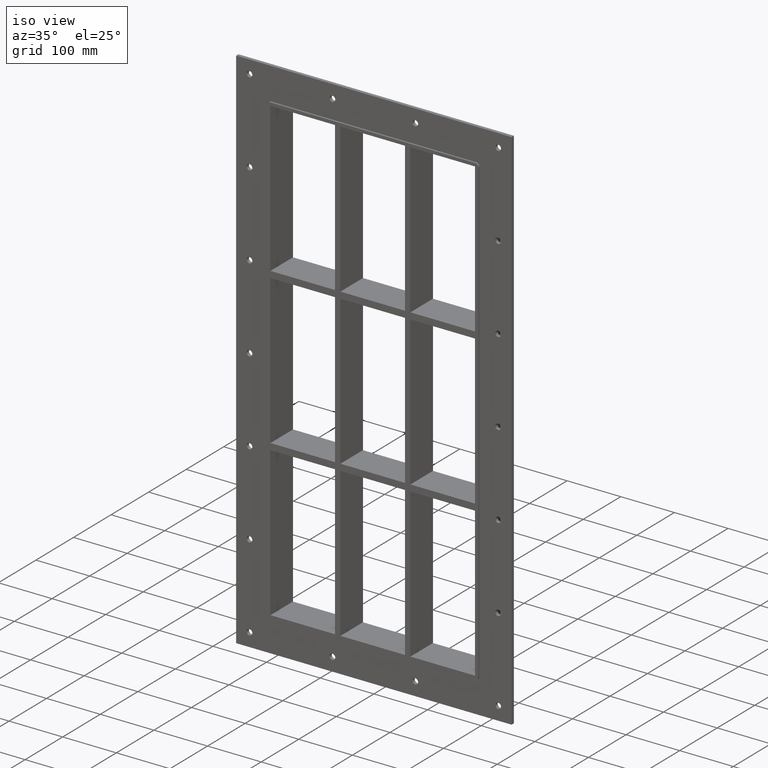
[diagram: clean part render]
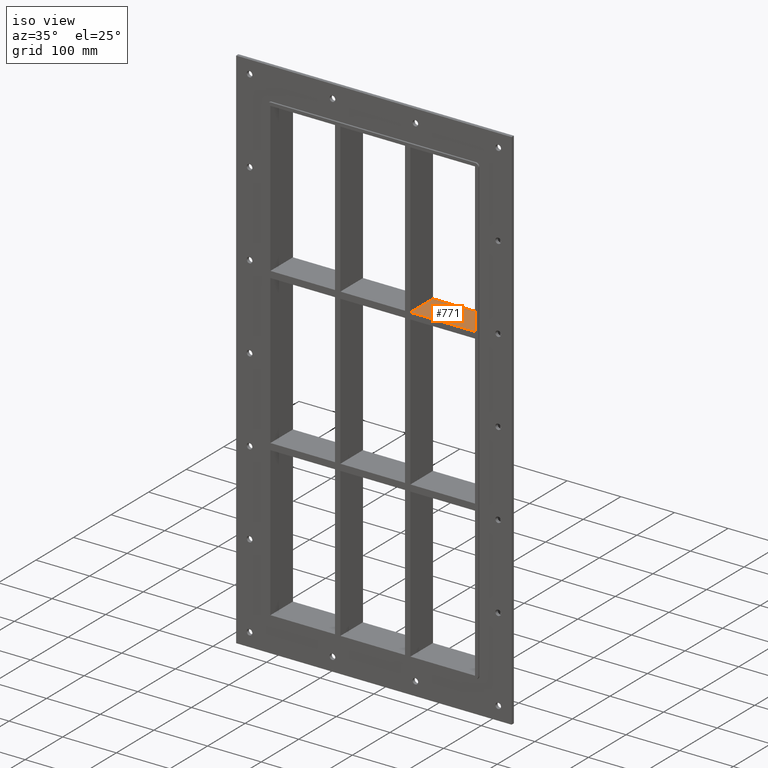
[diagram: same view with one face highlighted and labeled with its STEP entity id]
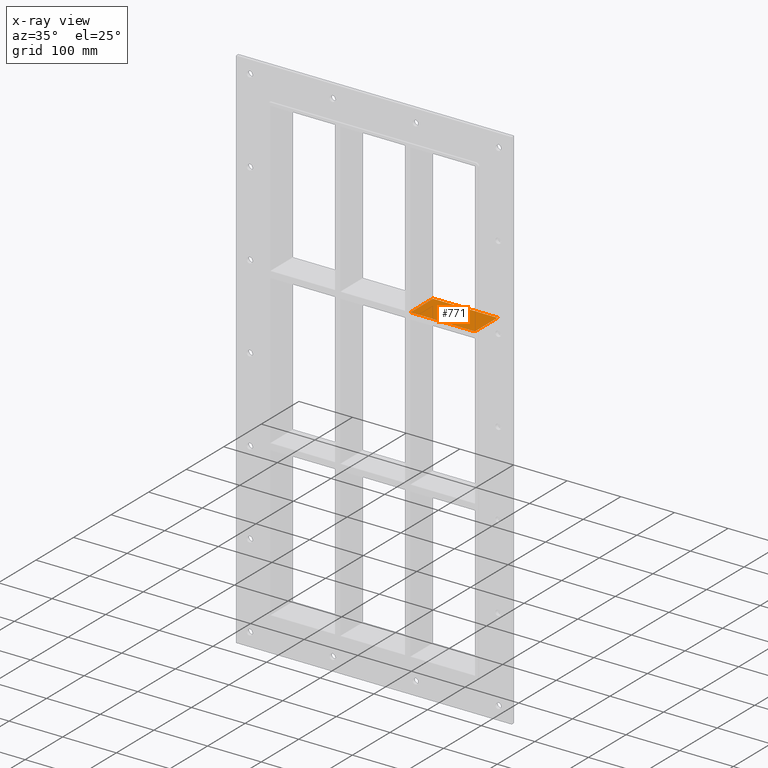
[diagram: x-ray of the same camera — body ghosted, the highlighted face saturated]
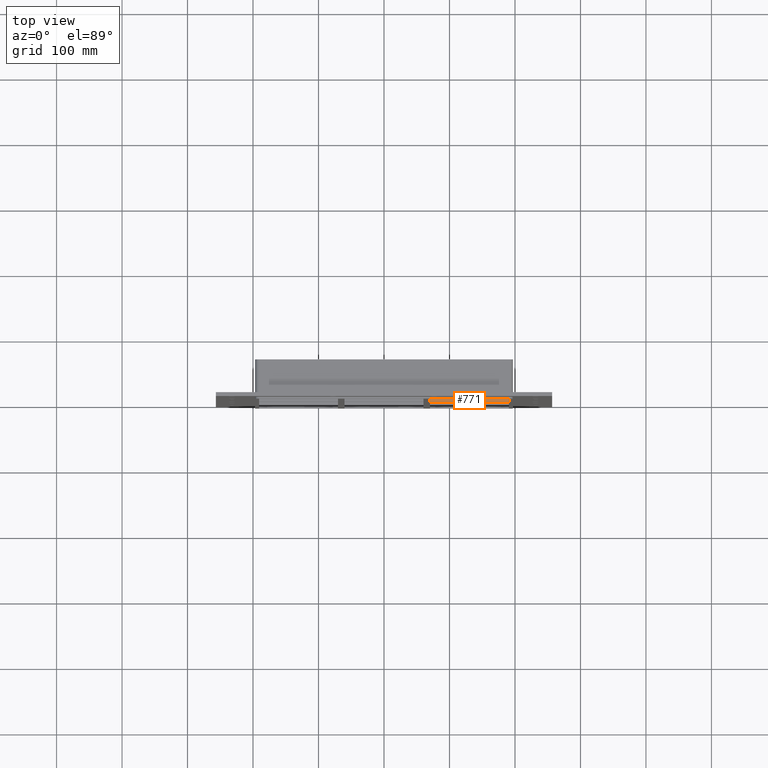
[diagram: same view with one face highlighted and labeled with its STEP entity id]
A machine part, iso view. The second image highlights one B-rep face of the part: STEP entity #771.
The next image is the same camera in x-ray: the body ghosted, the highlighted face saturated — about 0% of this face is hidden behind the body in this view.
A second angle (top view) of the same face is appended — the face is thin or edge-on in the first view.
In plain terms, the highlighted planar face has unit normal (0, 0, 1).
Its self-contained STEP definition (entity closure, byte-faithful):
#732=CARTESIAN_POINT('',(-190.75000000000045,-3.0,150.99999999999994));
#733=DIRECTION('',(0.0,0.0,1.0));
#734=DIRECTION('',(1.0,0.0,0.0));
#735=AXIS2_PLACEMENT_3D('',#732,#733,#734);
#736=PLANE('',#735);
#737=CARTESIAN_POINT('',(70.250000000003638,-3.0,151.00000000000014));
#738=VERTEX_POINT('',#737);
#739=CARTESIAN_POINT('',(70.250000000003638,57.0,151.00000000000014));
#740=VERTEX_POINT('',#739);
#741=CARTESIAN_POINT('',(70.250000000003638,-3.0,151.00000000000011));
#742=DIRECTION('',(0.0,1.0,0.0));
#743=VECTOR('',#742,60.0);
#744=LINE('',#741,#743);
#745=EDGE_CURVE('',#738,#740,#744,.T.);
#746=ORIENTED_EDGE('',*,*,#745,.F.);
#747=CARTESIAN_POINT('',(190.75000000000023,-3.0,151.00000000000023));
#748=VERTEX_POINT('',#747);
#749=CARTESIAN_POINT('',(70.250000000003638,-3.0,151.00000000000014));
#750=DIRECTION('',(1.0,0.0,0.0));
#751=VECTOR('',#750,120.49999999999659);
#752=LINE('',#749,#751);
#753=EDGE_CURVE('',#738,#748,#752,.T.);
#754=ORIENTED_EDGE('',*,*,#753,.T.);
#755=CARTESIAN_POINT('',(190.75000000000023,57.0,151.00000000000023));
#756=VERTEX_POINT('',#755);
#757=CARTESIAN_POINT('',(190.75000000000011,57.000000000000007,151.00000000000023));
#758=DIRECTION('',(0.0,-1.0,0.0));
#759=VECTOR('',#758,60.000000000000007);
#760=LINE('',#757,#759);
#761=EDGE_CURVE('',#756,#748,#760,.T.);
#762=ORIENTED_EDGE('',*,*,#761,.F.);
#763=CARTESIAN_POINT('',(70.250000000003638,57.0,151.00000000000014));
#764=DIRECTION('',(1.0,0.0,0.0));
#765=VECTOR('',#764,120.49999999999659);
#766=LINE('',#763,#765);
#767=EDGE_CURVE('',#740,#756,#766,.T.);
#768=ORIENTED_EDGE('',*,*,#767,.F.);
#769=EDGE_LOOP('',(#746,#754,#762,#768));
#770=FACE_OUTER_BOUND('',#769,.T.);
#771=ADVANCED_FACE('',(#770),#736,.T.);